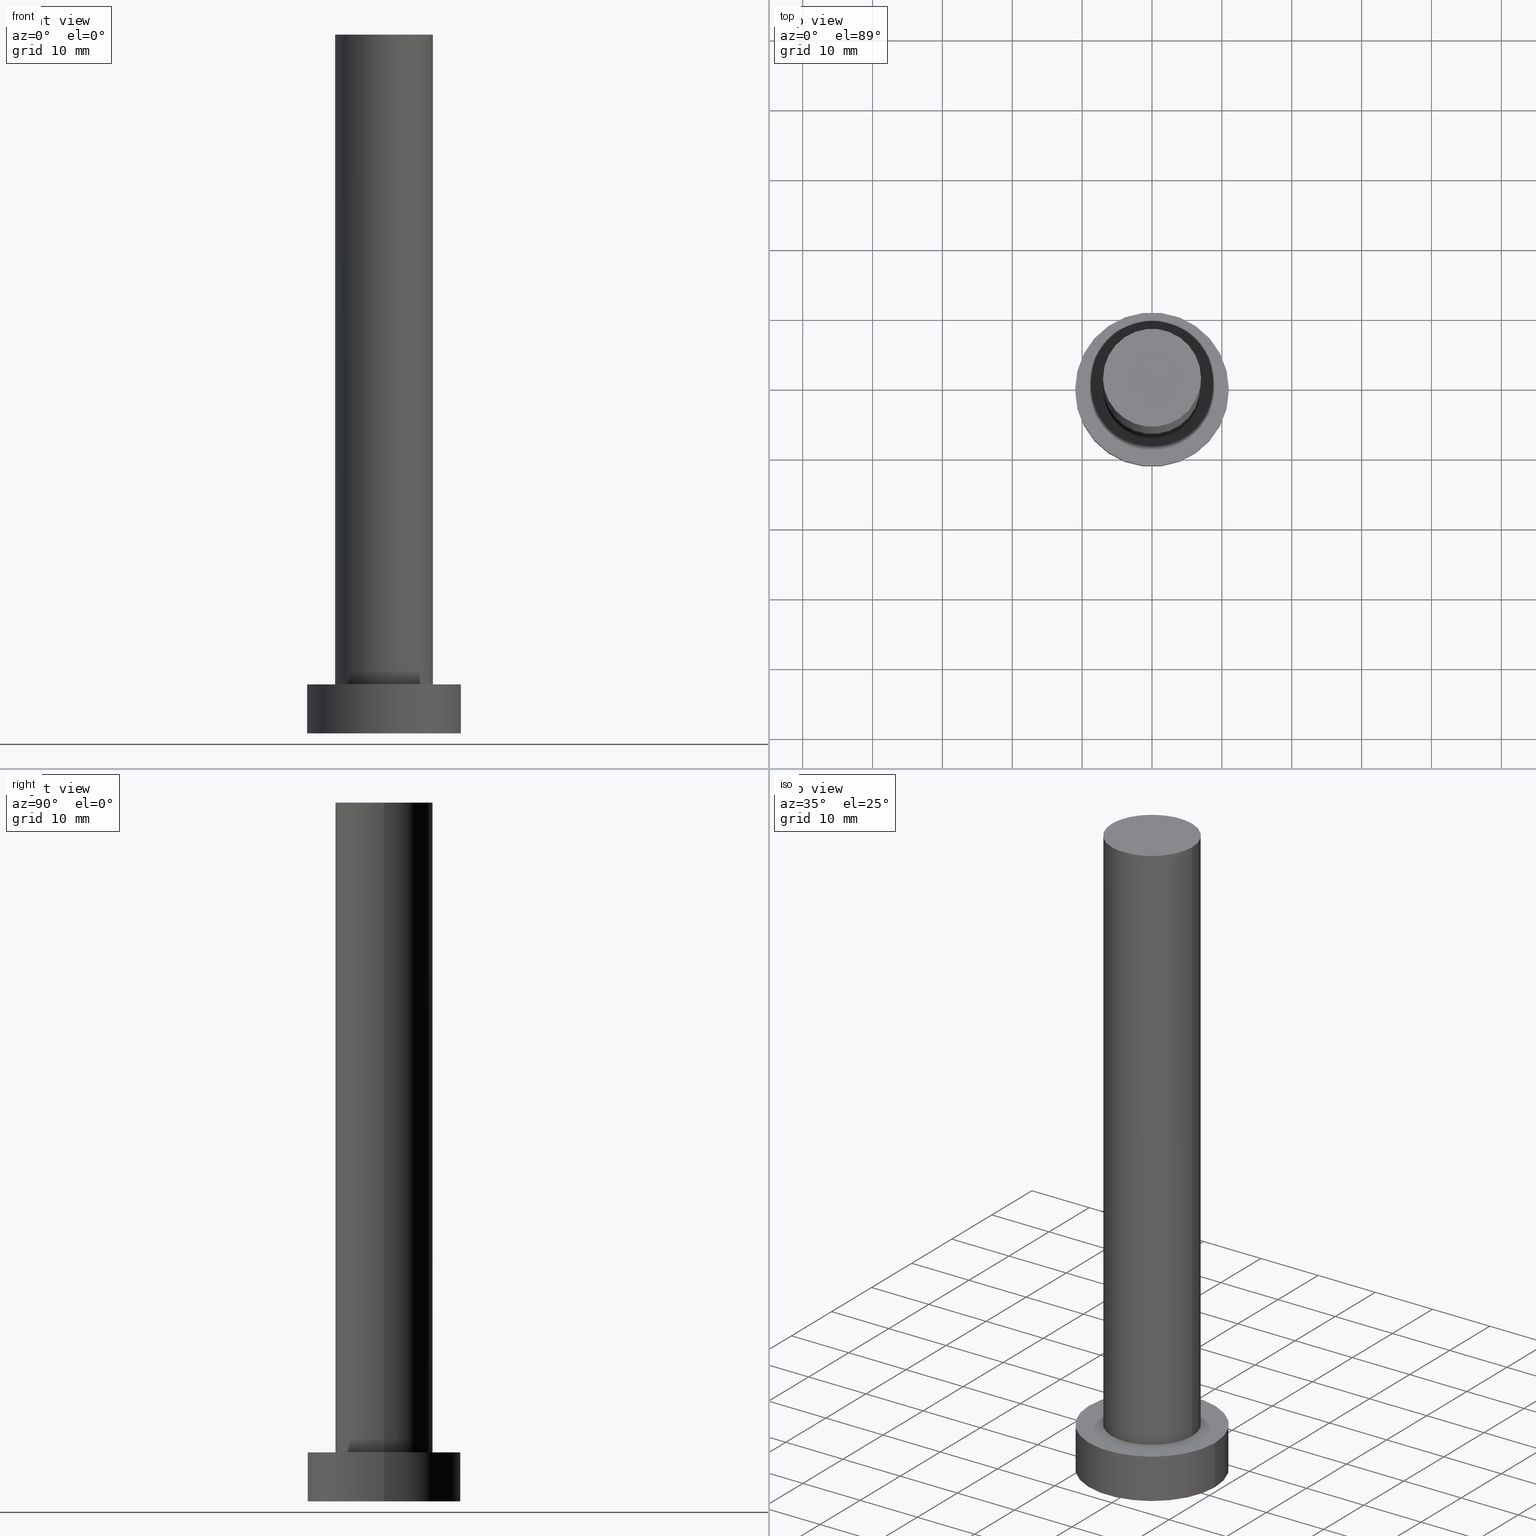
[diagram: canonical four-view strip — front | top / right | iso, engineering-drawing reading convention]
A machine part, canonical four-view strip (front | top / right | iso — engineering-drawing reading convention). The complete STEP part file that produces these views, byte-faithful:
ISO-10303-21;
HEADER;
FILE_DESCRIPTION (( 'STEP AP203' ),
    '1' );
FILE_NAME ('3e91.STEP',
    '2023-02-13T10:36:35',
    ( '' ),
    ( '' ),
    'SwSTEP 2.0',
    'SolidWorks 2019',
    '' );
FILE_SCHEMA (( 'CONFIG_CONTROL_DESIGN' ));
ENDSEC;

DATA;
#1 = EDGE_LOOP ( 'NONE', ( #231, #121 ) ) ;
#2 = CIRCLE ( 'NONE', #94, 11.00000000000000000 ) ;
#3 = DIRECTION ( 'NONE',  ( -0.000000000000000000, -0.000000000000000000, -1.000000000000000000 ) ) ;
#4 = DIRECTION ( 'NONE',  ( 1.000000000000000000, 0.000000000000000000, 0.000000000000000000 ) ) ;
#5 = AXIS2_PLACEMENT_3D ( 'NONE', #147, #226, #108 ) ;
#6 = CARTESIAN_POINT ( 'NONE',  ( 7.000000000000000888, 8.572527594031472204E-16, 100.0000000000000000 ) ) ;
#7 = CARTESIAN_POINT ( 'NONE',  ( 0.000000000000000000, 0.000000000000000000, 0.000000000000000000 ) ) ;
#8 = DIRECTION ( 'NONE',  ( -0.000000000000000000, -0.000000000000000000, -1.000000000000000000 ) ) ;
#9 = AXIS2_PLACEMENT_3D ( 'NONE', #41, #156, #4 ) ;
#10 = COORDINATED_UNIVERSAL_TIME_OFFSET ( 1, 0, .AHEAD. ) ;
#11 = CARTESIAN_POINT ( 'NONE',  ( 0.000000000000000000, 0.000000000000000000, 100.0000000000000000 ) ) ;
#12 = ORIENTED_EDGE ( 'NONE', *, *, #163, .T. ) ;
#13 = DIRECTION ( 'NONE',  ( 1.000000000000000000, 0.000000000000000000, 0.000000000000000000 ) ) ;
#14 = ORIENTED_EDGE ( 'NONE', *, *, #28, .T. ) ;
#15 = APPROVAL_ROLE ( '' ) ;
#16 = CARTESIAN_POINT ( 'NONE',  ( 0.000000000000000000, 0.000000000000000000, 7.000000000000000000 ) ) ;
#17 = LOCAL_TIME ( 11, 36, 35.00000000000000000, #161 ) ;
#18 = ORIENTED_EDGE ( 'NONE', *, *, #224, .T. ) ;
#19 = CARTESIAN_POINT ( 'NONE',  ( -11.00000000000000000, 0.000000000000000000, 7.000000000000000000 ) ) ;
#20 = ADVANCED_FACE ( 'NONE', ( #53 ), #205, .T. ) ;
#21 = DIRECTION ( 'NONE',  ( 1.000000000000000000, 0.000000000000000000, 0.000000000000000000 ) ) ;
#22 = DIRECTION ( 'NONE',  ( 1.000000000000000000, 0.000000000000000000, 0.000000000000000000 ) ) ;
#23 = FACE_BOUND ( 'NONE', #104, .T. ) ;
#24 = FACE_OUTER_BOUND ( 'NONE', #89, .T. ) ;
#25 = APPLICATION_PROTOCOL_DEFINITION ( 'international standard', 'config_control_design', 1994, #86 ) ;
#26 = COORDINATED_UNIVERSAL_TIME_OFFSET ( 1, 0, .AHEAD. ) ;
#27 = CC_DESIGN_SECURITY_CLASSIFICATION ( #98, ( #114 ) ) ;
#28 = EDGE_CURVE ( 'NONE', #170, #74, #60, .T. ) ;
#29 = DIRECTION ( 'NONE',  ( -1.000000000000000000, 0.000000000000000000, 0.000000000000000000 ) ) ;
#30 = ORIENTED_EDGE ( 'NONE', *, *, #151, .T. ) ;
#31 = DIRECTION ( 'NONE',  ( 0.000000000000000000, 0.000000000000000000, 1.000000000000000000 ) ) ;
#32 = CALENDAR_DATE ( 2023, 13, 2 ) ;
#33 = EDGE_CURVE ( 'NONE', #223, #218, #153, .T. ) ;
#34 = CALENDAR_DATE ( 2023, 13, 2 ) ;
#35 = VECTOR ( 'NONE', #157, 1000.000000000000000 ) ;
#36 = ORIENTED_EDGE ( 'NONE', *, *, #107, .F. ) ;
#37 = CIRCLE ( 'NONE', #221, 7.000000000000000888 ) ;
#38 = ORIENTED_EDGE ( 'NONE', *, *, #123, .F. ) ;
#39 = VERTEX_POINT ( 'NONE', #209 ) ;
#40 = AXIS2_PLACEMENT_3D ( 'NONE', #192, #216, #173 ) ;
#41 = CARTESIAN_POINT ( 'NONE',  ( 0.000000000000000000, 0.000000000000000000, 7.000000000000000000 ) ) ;
#42 = CARTESIAN_POINT ( 'NONE',  ( -7.000000000000000888, 0.000000000000000000, 7.000000000000000000 ) ) ;
#43 = CARTESIAN_POINT ( 'NONE',  ( 0.000000000000000000, 0.000000000000000000, 0.000000000000000000 ) ) ;
#44 = PRODUCT_DEFINITION_SHAPE ( 'NONE', 'NONE',  #210 ) ;
#45 = FACE_OUTER_BOUND ( 'NONE', #1, .T. ) ;
#46 = LINE ( 'NONE', #193, #254 ) ;
#47 = MANIFOLD_SOLID_BREP ( 'P�idat vysunut�m3', #229 ) ;
#48 = APPROVAL ( #249, 'NEUR�EN�' ) ;
#49 = PERSON_AND_ORGANIZATION ( #145, #213 ) ;
#50 = APPROVAL_STATUS ( 'not_yet_approved' ) ;
#51 = CC_DESIGN_PERSON_AND_ORGANIZATION_ASSIGNMENT ( #63, #81, ( #114 ) ) ;
#52 = LOCAL_TIME ( 11, 36, 35.00000000000000000, #169 ) ;
#53 = FACE_OUTER_BOUND ( 'NONE', #54, .T. ) ;
#54 = EDGE_LOOP ( 'NONE', ( #72, #55, #168, #18 ) ) ;
#55 = ORIENTED_EDGE ( 'NONE', *, *, #136, .F. ) ;
#56 = CARTESIAN_POINT ( 'NONE',  ( 7.000000000000000888, 8.572527594031472204E-16, 100.0000000000000000 ) ) ;
#57 = DIRECTION ( 'NONE',  ( -1.000000000000000000, 0.000000000000000000, 0.000000000000000000 ) ) ;
#58 = DIRECTION ( 'NONE',  ( -1.000000000000000000, 0.000000000000000000, 0.000000000000000000 ) ) ;
#59 = FACE_OUTER_BOUND ( 'NONE', #82, .T. ) ;
#60 = CIRCLE ( 'NONE', #5, 7.000000000000000888 ) ;
#61 = APPLICATION_CONTEXT ( 'configuration controlled 3d designs of mechanical parts and assemblies' ) ;
#62 = EDGE_CURVE ( 'NONE', #188, #187, #118, .T. ) ;
#63 = PERSON_AND_ORGANIZATION ( #145, #213 ) ;
#64 = PERSON_AND_ORGANIZATION_ROLE ( 'design_supplier' ) ;
#65 = DATE_AND_TIME ( #165, #17 ) ;
#66 = DIRECTION ( 'NONE',  ( 0.000000000000000000, 0.000000000000000000, 1.000000000000000000 ) ) ;
#67 = DIRECTION ( 'NONE',  ( -0.000000000000000000, -0.000000000000000000, -1.000000000000000000 ) ) ;
#68 = AXIS2_PLACEMENT_3D ( 'NONE', #176, #97, #78 ) ;
#69 = ORIENTED_EDGE ( 'NONE', *, *, #28, .F. ) ;
#70 =( GEOMETRIC_REPRESENTATION_CONTEXT ( 3 ) GLOBAL_UNCERTAINTY_ASSIGNED_CONTEXT ( ( #232 ) ) GLOBAL_UNIT_ASSIGNED_CONTEXT ( ( #183, #144, #245 ) ) REPRESENTATION_CONTEXT ( 'NONE', 'WORKASPACE' ) );
#71 = ADVANCED_FACE ( 'NONE', ( #23, #152 ), #137, .T. ) ;
#72 = ORIENTED_EDGE ( 'NONE', *, *, #151, .F. ) ;
#73 = ORIENTED_EDGE ( 'NONE', *, *, #163, .F. ) ;
#74 = VERTEX_POINT ( 'NONE', #42 ) ;
#75 = CARTESIAN_POINT ( 'NONE',  ( 7.000000000000000888, 8.572527594031472204E-16, 7.000000000000000000 ) ) ;
#76 = DIRECTION ( 'NONE',  ( -0.000000000000000000, -0.000000000000000000, -1.000000000000000000 ) ) ;
#77 = CARTESIAN_POINT ( 'NONE',  ( 0.000000000000000000, 0.000000000000000000, 100.0000000000000000 ) ) ;
#78 = DIRECTION ( 'NONE',  ( 1.000000000000000000, 0.000000000000000000, 0.000000000000000000 ) ) ;
#79 = DIRECTION ( 'NONE',  ( 0.000000000000000000, 0.000000000000000000, 1.000000000000000000 ) ) ;
#80 = APPROVAL_DATE_TIME ( #181, #133 ) ;
#81 = PERSON_AND_ORGANIZATION_ROLE ( 'creator' ) ;
#82 = EDGE_LOOP ( 'NONE', ( #172, #92, #164, #12 ) ) ;
#83 = DATE_TIME_ROLE ( 'creation_date' ) ;
#84 = ORIENTED_EDGE ( 'NONE', *, *, #198, .T. ) ;
#85 = CC_DESIGN_APPROVAL ( #133, ( #210 ) ) ;
#86 = APPLICATION_CONTEXT ( 'configuration controlled 3d designs of mechanical parts and assemblies' ) ;
#87 = CC_DESIGN_PERSON_AND_ORGANIZATION_ASSIGNMENT ( #49, #248, ( #127 ) ) ;
#88 = CALENDAR_DATE ( 2023, 13, 2 ) ;
#89 = EDGE_LOOP ( 'NONE', ( #119, #141 ) ) ;
#90 = DIRECTION ( 'NONE',  ( -0.000000000000000000, -0.000000000000000000, -1.000000000000000000 ) ) ;
#91 = CC_DESIGN_PERSON_AND_ORGANIZATION_ASSIGNMENT ( #217, #103, ( #98 ) ) ;
#92 = ORIENTED_EDGE ( 'NONE', *, *, #33, .F. ) ;
#93 = VECTOR ( 'NONE', #3, 1000.000000000000000 ) ;
#94 = AXIS2_PLACEMENT_3D ( 'NONE', #43, #134, #215 ) ;
#95 = CARTESIAN_POINT ( 'NONE',  ( 0.000000000000000000, 0.000000000000000000, 0.000000000000000000 ) ) ;
#96 = CARTESIAN_POINT ( 'NONE',  ( 0.000000000000000000, 0.000000000000000000, 100.0000000000000000 ) ) ;
#97 = DIRECTION ( 'NONE',  ( 0.000000000000000000, 0.000000000000000000, 1.000000000000000000 ) ) ;
#98 = SECURITY_CLASSIFICATION ( '', '', #139 ) ;
#99 = CARTESIAN_POINT ( 'NONE',  ( 0.000000000000000000, 0.000000000000000000, 7.000000000000000000 ) ) ;
#100 = CARTESIAN_POINT ( 'NONE',  ( -11.00000000000000000, 0.000000000000000000, 7.000000000000000000 ) ) ;
#101 = APPROVAL_ROLE ( '' ) ;
#102 = CC_DESIGN_DATE_AND_TIME_ASSIGNMENT ( #126, #230, ( #98 ) ) ;
#103 = PERSON_AND_ORGANIZATION_ROLE ( 'classification_officer' ) ;
#104 = EDGE_LOOP ( 'NONE', ( #73, #69 ) ) ;
#105 = APPROVAL_STATUS ( 'not_yet_approved' ) ;
#106 = DATE_AND_TIME ( #88, #52 ) ;
#107 = EDGE_CURVE ( 'NONE', #223, #74, #197, .T. ) ;
#108 = DIRECTION ( 'NONE',  ( 1.000000000000000000, 0.000000000000000000, 0.000000000000000000 ) ) ;
#109 = DIRECTION ( 'NONE',  ( 0.000000000000000000, 0.000000000000000000, 1.000000000000000000 ) ) ;
#110 = CC_DESIGN_APPROVAL ( #158, ( #114 ) ) ;
#111 = DIRECTION ( 'NONE',  ( -0.000000000000000000, -0.000000000000000000, -1.000000000000000000 ) ) ;
#112 = FACE_OUTER_BOUND ( 'NONE', #255, .T. ) ;
#113 = DIRECTION ( 'NONE',  ( 1.000000000000000000, 0.000000000000000000, -0.000000000000000000 ) ) ;
#114 = PRODUCT_DEFINITION_FORMATION_WITH_SPECIFIED_SOURCE ( 'LIBOVOLN�', '', #127, .NOT_KNOWN. ) ;
#115 = DIRECTION ( 'NONE',  ( 0.000000000000000000, 0.000000000000000000, 1.000000000000000000 ) ) ;
#116 = CARTESIAN_POINT ( 'NONE',  ( 0.000000000000000000, 0.000000000000000000, 0.000000000000000000 ) ) ;
#117 = PERSON_AND_ORGANIZATION ( #145, #213 ) ;
#118 = CIRCLE ( 'NONE', #9, 11.00000000000000000 ) ;
#119 = ORIENTED_EDGE ( 'NONE', *, *, #224, .F. ) ;
#120 = AXIS2_PLACEMENT_3D ( 'NONE', #11, #66, #142 ) ;
#121 = ORIENTED_EDGE ( 'NONE', *, *, #191, .T. ) ;
#122 = AXIS2_PLACEMENT_3D ( 'NONE', #219, #67, #29 ) ;
#123 = EDGE_CURVE ( 'NONE', #187, #39, #194, .T. ) ;
#124 = PERSON_AND_ORGANIZATION ( #145, #213 ) ;
#125 = CALENDAR_DATE ( 2023, 13, 2 ) ;
#126 = DATE_AND_TIME ( #34, #251 ) ;
#127 = PRODUCT ( '3e91', '3e91', '', ( #162 ) ) ;
#128 = PERSON_AND_ORGANIZATION ( #145, #213 ) ;
#129 = ADVANCED_FACE ( 'NONE', ( #24 ), #175, .F. ) ;
#130 = CYLINDRICAL_SURFACE ( 'NONE', #235, 7.000000000000000888 ) ;
#131 = APPROVAL_PERSON_ORGANIZATION ( #202, #133, #101 ) ;
#132 = CARTESIAN_POINT ( 'NONE',  ( -7.000000000000000888, 0.000000000000000000, 100.0000000000000000 ) ) ;
#133 = APPROVAL ( #50, 'NEUR�EN�' ) ;
#134 = DIRECTION ( 'NONE',  ( 0.000000000000000000, 0.000000000000000000, 1.000000000000000000 ) ) ;
#135 = CIRCLE ( 'NONE', #68, 7.000000000000000888 ) ;
#136 = EDGE_CURVE ( 'NONE', #187, #188, #178, .T. ) ;
#137 = PLANE ( 'NONE',  #140 ) ;
#138 = CC_DESIGN_DATE_AND_TIME_ASSIGNMENT ( #167, #83, ( #210 ) ) ;
#139 = SECURITY_CLASSIFICATION_LEVEL ( 'unclassified' ) ;
#140 = AXIS2_PLACEMENT_3D ( 'NONE', #154, #115, #113 ) ;
#141 = ORIENTED_EDGE ( 'NONE', *, *, #171, .F. ) ;
#142 = DIRECTION ( 'NONE',  ( 1.000000000000000000, 0.000000000000000000, -0.000000000000000000 ) ) ;
#143 = PRODUCT_RELATED_PRODUCT_CATEGORY ( 'detail', '', ( #127 ) ) ;
#144 =( NAMED_UNIT ( * ) PLANE_ANGLE_UNIT ( ) SI_UNIT ( $, .RADIAN. ) );
#145 = PERSON ( 'NEUR�EN�', 'NEUR�EN�', 'NEUR�EN�', ('NEUR�EN�'), ('NEUR�EN�'), ('NEUR�EN�') ) ;
#146 = CC_DESIGN_PERSON_AND_ORGANIZATION_ASSIGNMENT ( #242, #64, ( #114 ) ) ;
#147 = CARTESIAN_POINT ( 'NONE',  ( 0.000000000000000000, 0.000000000000000000, 7.000000000000000000 ) ) ;
#148 = ORIENTED_EDGE ( 'NONE', *, *, #62, .T. ) ;
#149 = AXIS2_PLACEMENT_3D ( 'NONE', #16, #90, #252 ) ;
#150 = VERTEX_POINT ( 'NONE', #195 ) ;
#151 = EDGE_CURVE ( 'NONE', #188, #150, #46, .T. ) ;
#152 = FACE_OUTER_BOUND ( 'NONE', #250, .T. ) ;
#153 = CIRCLE ( 'NONE', #40, 7.000000000000000888 ) ;
#154 = CARTESIAN_POINT ( 'NONE',  ( 0.000000000000000000, 0.000000000000000000, 7.000000000000000000 ) ) ;
#155 = APPROVAL_PERSON_ORGANIZATION ( #117, #158, #15 ) ;
#156 = DIRECTION ( 'NONE',  ( 0.000000000000000000, 0.000000000000000000, 1.000000000000000000 ) ) ;
#157 = DIRECTION ( 'NONE',  ( -0.000000000000000000, -0.000000000000000000, -1.000000000000000000 ) ) ;
#158 = APPROVAL ( #105, 'NEUR�EN�' ) ;
#159 = CARTESIAN_POINT ( 'NONE',  ( 0.000000000000000000, 0.000000000000000000, 100.0000000000000000 ) ) ;
#160 = APPROVAL_PERSON_ORGANIZATION ( #128, #48, #228 ) ;
#161 = COORDINATED_UNIVERSAL_TIME_OFFSET ( 1, 0, .AHEAD. ) ;
#162 = MECHANICAL_CONTEXT ( 'NONE', #61, 'mechanical' ) ;
#163 = EDGE_CURVE ( 'NONE', #74, #170, #135, .T. ) ;
#164 = ORIENTED_EDGE ( 'NONE', *, *, #107, .T. ) ;
#165 = CALENDAR_DATE ( 2023, 13, 2 ) ;
#166 = APPLICATION_PROTOCOL_DEFINITION ( 'international standard', 'config_control_design', 1994, #61 ) ;
#167 = DATE_AND_TIME ( #32, #207 ) ;
#168 = ORIENTED_EDGE ( 'NONE', *, *, #123, .T. ) ;
#169 = COORDINATED_UNIVERSAL_TIME_OFFSET ( 1, 0, .AHEAD. ) ;
#170 = VERTEX_POINT ( 'NONE', #75 ) ;
#171 = EDGE_CURVE ( 'NONE', #150, #39, #211, .T. ) ;
#172 = ORIENTED_EDGE ( 'NONE', *, *, #198, .F. ) ;
#173 = DIRECTION ( 'NONE',  ( 1.000000000000000000, 0.000000000000000000, 0.000000000000000000 ) ) ;
#174 = LINE ( 'NONE', #6, #196 ) ;
#175 = PLANE ( 'NONE',  #206 ) ;
#176 = CARTESIAN_POINT ( 'NONE',  ( 0.000000000000000000, 0.000000000000000000, 7.000000000000000000 ) ) ;
#177 = CARTESIAN_POINT ( 'NONE',  ( 11.00000000000000000, 1.347111479062088405E-15, 7.000000000000000000 ) ) ;
#178 = CIRCLE ( 'NONE', #184, 11.00000000000000000 ) ;
#179 = PERSON_AND_ORGANIZATION_ROLE ( 'creator' ) ;
#180 = ORIENTED_EDGE ( 'NONE', *, *, #191, .F. ) ;
#181 = DATE_AND_TIME ( #125, #225 ) ;
#182 = ORIENTED_EDGE ( 'NONE', *, *, #136, .T. ) ;
#183 =( LENGTH_UNIT ( ) NAMED_UNIT ( * ) SI_UNIT ( .MILLI., .METRE. ) );
#184 = AXIS2_PLACEMENT_3D ( 'NONE', #99, #240, #22 ) ;
#185 = FACE_OUTER_BOUND ( 'NONE', #253, .T. ) ;
#186 = SHAPE_DEFINITION_REPRESENTATION ( #44, #244 ) ;
#187 = VERTEX_POINT ( 'NONE', #100 ) ;
#188 = VERTEX_POINT ( 'NONE', #177 ) ;
#189 = APPROVAL_DATE_TIME ( #106, #48 ) ;
#190 = DESIGN_CONTEXT ( 'detailed design', #86, 'design' ) ;
#191 = EDGE_CURVE ( 'NONE', #218, #223, #37, .T. ) ;
#192 = CARTESIAN_POINT ( 'NONE',  ( 0.000000000000000000, 0.000000000000000000, 100.0000000000000000 ) ) ;
#193 = CARTESIAN_POINT ( 'NONE',  ( 11.00000000000000000, 1.347111479062088405E-15, 7.000000000000000000 ) ) ;
#194 = LINE ( 'NONE', #19, #93 ) ;
#195 = CARTESIAN_POINT ( 'NONE',  ( 11.00000000000000000, 1.347111479062088405E-15, 0.000000000000000000 ) ) ;
#196 = VECTOR ( 'NONE', #8, 1000.000000000000000 ) ;
#197 = LINE ( 'NONE', #212, #35 ) ;
#198 = EDGE_CURVE ( 'NONE', #218, #170, #174, .T. ) ;
#199 = CYLINDRICAL_SURFACE ( 'NONE', #122, 11.00000000000000000 ) ;
#200 = COORDINATED_UNIVERSAL_TIME_OFFSET ( 1, 0, .AHEAD. ) ;
#201 = ADVANCED_FACE ( 'NONE', ( #112 ), #214, .T. ) ;
#202 = PERSON_AND_ORGANIZATION ( #145, #213 ) ;
#203 = PLANE ( 'NONE',  #120 ) ;
#204 = AXIS2_PLACEMENT_3D ( 'NONE', #116, #31, #13 ) ;
#205 = CYLINDRICAL_SURFACE ( 'NONE', #149, 11.00000000000000000 ) ;
#206 = AXIS2_PLACEMENT_3D ( 'NONE', #7, #109, #233 ) ;
#207 = LOCAL_TIME ( 11, 36, 35.00000000000000000, #10 ) ;
#208 = ORIENTED_EDGE ( 'NONE', *, *, #171, .T. ) ;
#209 = CARTESIAN_POINT ( 'NONE',  ( -11.00000000000000000, 0.000000000000000000, 0.000000000000000000 ) ) ;
#210 = PRODUCT_DEFINITION ( 'NEZN�M�', '', #114, #190 ) ;
#211 = CIRCLE ( 'NONE', #238, 11.00000000000000000 ) ;
#212 = CARTESIAN_POINT ( 'NONE',  ( -7.000000000000000888, 0.000000000000000000, 100.0000000000000000 ) ) ;
#213 = ORGANIZATION ( 'NEUR�EN�', 'NEUR�EN�', '' ) ;
#214 = CYLINDRICAL_SURFACE ( 'NONE', #241, 7.000000000000000888 ) ;
#215 = DIRECTION ( 'NONE',  ( 1.000000000000000000, 0.000000000000000000, 0.000000000000000000 ) ) ;
#216 = DIRECTION ( 'NONE',  ( 0.000000000000000000, 0.000000000000000000, 1.000000000000000000 ) ) ;
#217 = PERSON_AND_ORGANIZATION ( #145, #213 ) ;
#218 = VERTEX_POINT ( 'NONE', #56 ) ;
#219 = CARTESIAN_POINT ( 'NONE',  ( 0.000000000000000000, 0.000000000000000000, 7.000000000000000000 ) ) ;
#220 = ADVANCED_FACE ( 'NONE', ( #59 ), #130, .T. ) ;
#221 = AXIS2_PLACEMENT_3D ( 'NONE', #96, #237, #21 ) ;
#222 = APPROVAL_DATE_TIME ( #65, #158 ) ;
#223 = VERTEX_POINT ( 'NONE', #132 ) ;
#224 = EDGE_CURVE ( 'NONE', #39, #150, #2, .T. ) ;
#225 = LOCAL_TIME ( 11, 36, 35.00000000000000000, #200 ) ;
#226 = DIRECTION ( 'NONE',  ( 0.000000000000000000, 0.000000000000000000, 1.000000000000000000 ) ) ;
#227 = ADVANCED_FACE ( 'NONE', ( #45 ), #203, .T. ) ;
#228 = APPROVAL_ROLE ( '' ) ;
#229 = CLOSED_SHELL ( 'NONE', ( #201, #239, #20, #71, #129, #220, #227 ) ) ;
#230 = DATE_TIME_ROLE ( 'classification_date' ) ;
#231 = ORIENTED_EDGE ( 'NONE', *, *, #33, .T. ) ;
#232 = UNCERTAINTY_MEASURE_WITH_UNIT (LENGTH_MEASURE( 1.000000000000000082E-05 ), #183, 'distance_accuracy_value', 'NONE');
#233 = DIRECTION ( 'NONE',  ( 1.000000000000000000, 0.000000000000000000, -0.000000000000000000 ) ) ;
#234 = DIRECTION ( 'NONE',  ( 1.000000000000000000, 0.000000000000000000, 0.000000000000000000 ) ) ;
#235 = AXIS2_PLACEMENT_3D ( 'NONE', #77, #111, #57 ) ;
#236 = DIRECTION ( 'NONE',  ( -0.000000000000000000, -0.000000000000000000, -1.000000000000000000 ) ) ;
#237 = DIRECTION ( 'NONE',  ( 0.000000000000000000, 0.000000000000000000, 1.000000000000000000 ) ) ;
#238 = AXIS2_PLACEMENT_3D ( 'NONE', #95, #79, #234 ) ;
#239 = ADVANCED_FACE ( 'NONE', ( #185 ), #199, .T. ) ;
#240 = DIRECTION ( 'NONE',  ( 0.000000000000000000, 0.000000000000000000, 1.000000000000000000 ) ) ;
#241 = AXIS2_PLACEMENT_3D ( 'NONE', #159, #76, #58 ) ;
#242 = PERSON_AND_ORGANIZATION ( #145, #213 ) ;
#243 = CC_DESIGN_PERSON_AND_ORGANIZATION_ASSIGNMENT ( #124, #179, ( #210 ) ) ;
#244 = ADVANCED_BREP_SHAPE_REPRESENTATION ( '3e91', ( #47, #204 ), #70 ) ;
#245 =( NAMED_UNIT ( * ) SI_UNIT ( $, .STERADIAN. ) SOLID_ANGLE_UNIT ( ) );
#246 = ORIENTED_EDGE ( 'NONE', *, *, #62, .F. ) ;
#247 = CC_DESIGN_APPROVAL ( #48, ( #98 ) ) ;
#248 = PERSON_AND_ORGANIZATION_ROLE ( 'design_owner' ) ;
#249 = APPROVAL_STATUS ( 'not_yet_approved' ) ;
#250 = EDGE_LOOP ( 'NONE', ( #182, #148 ) ) ;
#251 = LOCAL_TIME ( 11, 36, 35.00000000000000000, #26 ) ;
#252 = DIRECTION ( 'NONE',  ( -1.000000000000000000, 0.000000000000000000, 0.000000000000000000 ) ) ;
#253 = EDGE_LOOP ( 'NONE', ( #246, #30, #208, #38 ) ) ;
#254 = VECTOR ( 'NONE', #236, 1000.000000000000000 ) ;
#255 = EDGE_LOOP ( 'NONE', ( #180, #84, #14, #36 ) ) ;
ENDSEC;
END-ISO-10303-21;
